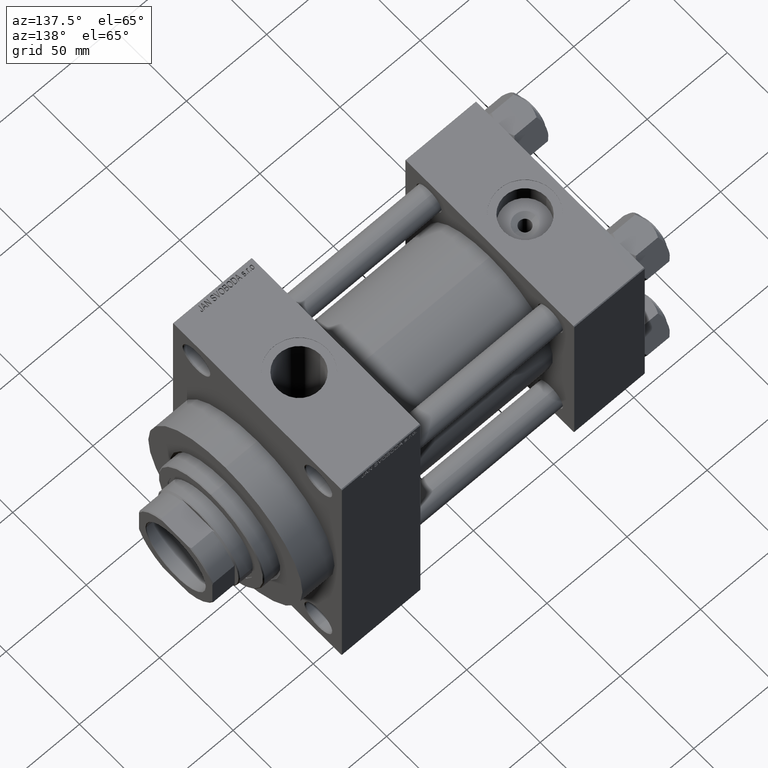
[diagram: clean part render]
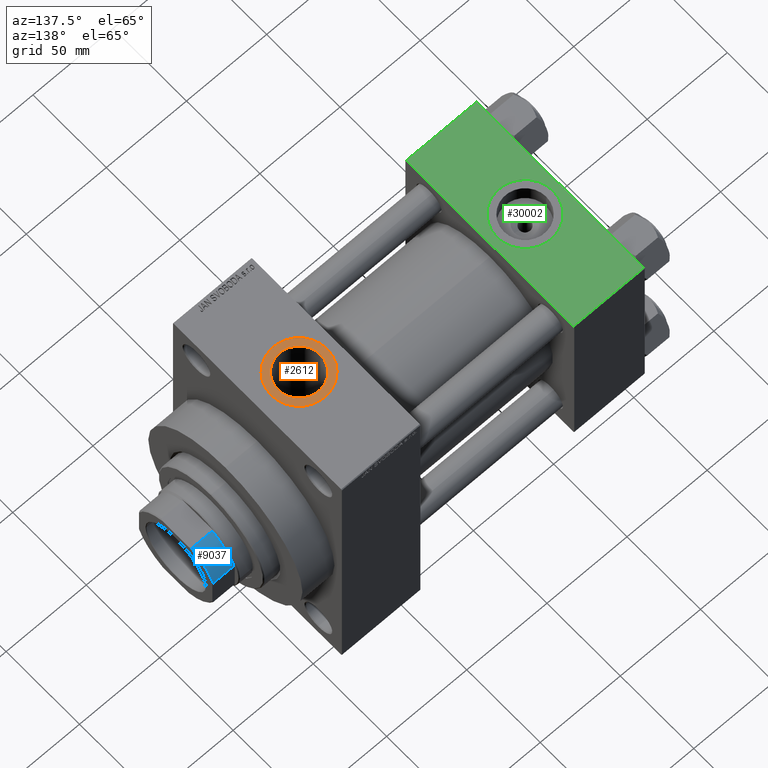
[diagram: same view with three faces highlighted in distinct colors, each labeled with its STEP entity id]
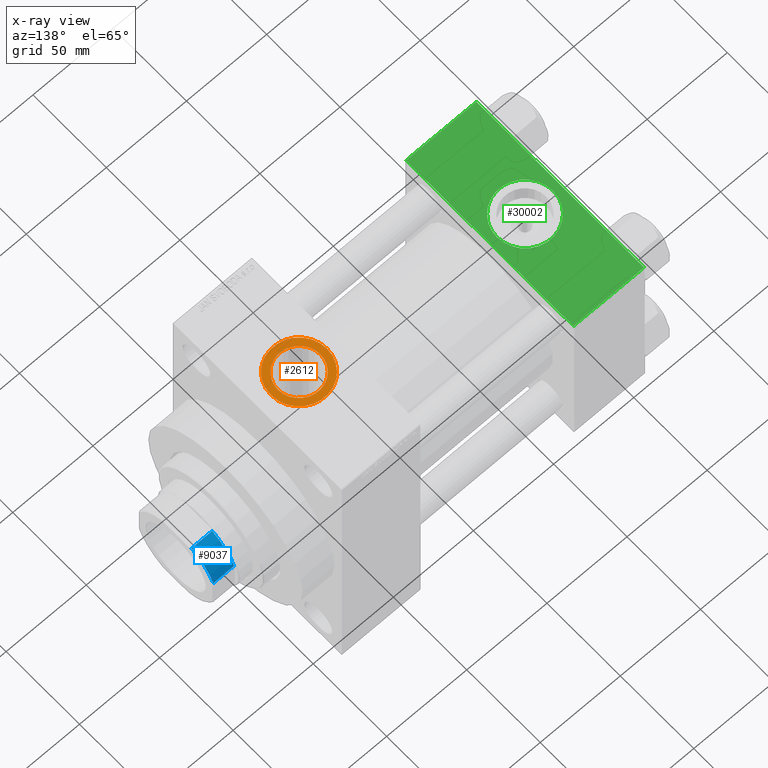
[diagram: x-ray of the same camera — body ghosted, the three highlighted faces saturated]
A machine part, auxiliary view with three faces highlighted in distinct colors.
The next image is the same camera in x-ray (body ghosted, the three faces saturated) — at least one of them is partly hidden behind the body in this view.
Their STEP definitions:

[orange] entity #2612 — the highlighted planar face has unit normal (0, 0, 1).
#2552 = ORIENTED_EDGE ( 'NONE', *, *, #45550, .T. ) ;
#2612 = ADVANCED_FACE ( 'NONE', ( #10453, #43736 ), #35786, .T. ) ;
#4523 = ORIENTED_EDGE ( 'NONE', *, *, #10465, .T. ) ;
#4833 = DIRECTION ( 'NONE',  ( -0.000000000000000000, -0.000000000000000000, -1.000000000000000000 ) ) ;
#5411 = CARTESIAN_POINT ( 'NONE',  ( 162.9999999999999716, -1.086087741481131350E-14, 89.79999999999998295 ) ) ;
#6574 = CARTESIAN_POINT ( 'NONE',  ( 180.5000000000000000, -1.086087741481131350E-14, 89.79999999999998295 ) ) ;
#8931 = VERTEX_POINT ( 'NONE', #21522 ) ;
#9294 = VERTEX_POINT ( 'NONE', #31735 ) ;
#10453 = FACE_BOUND ( 'NONE', #12890, .T. ) ;
#10465 = EDGE_CURVE ( 'NONE', #16751, #44536, #30409, .T. ) ;
#11156 = CARTESIAN_POINT ( 'NONE',  ( 162.9999999999999716, -1.086087741481131350E-14, 89.79999999999998295 ) ) ;
#12041 = CARTESIAN_POINT ( 'NONE',  ( 162.9999999999999716, -1.086087741481131350E-14, 89.79999999999998295 ) ) ;
#12855 = EDGE_CURVE ( 'NONE', #8931, #9294, #23612, .T. ) ;
#12890 = EDGE_LOOP ( 'NONE', ( #32773, #31134 ) ) ;
#16751 = VERTEX_POINT ( 'NONE', #36260 ) ;
#20125 = AXIS2_PLACEMENT_3D ( 'NONE', #11156, #37434, #44902 ) ;
#20637 = EDGE_CURVE ( 'NONE', #9294, #8931, #21143, .T. ) ;
#21143 = CIRCLE ( 'NONE', #23436, 13.22000000000000952 ) ;
#21522 = CARTESIAN_POINT ( 'NONE',  ( 149.7799999999999727, -1.086087741481131350E-14, 89.79999999999998295 ) ) ;
#22954 = CARTESIAN_POINT ( 'NONE',  ( 162.9999999999999716, -1.086087741481131350E-14, 89.79999999999998295 ) ) ;
#23436 = AXIS2_PLACEMENT_3D ( 'NONE', #22954, #4833, #37651 ) ;
#23612 = CIRCLE ( 'NONE', #27463, 13.22000000000000952 ) ;
#25893 = CARTESIAN_POINT ( 'NONE',  ( 162.9999999999999716, -1.086087741481131350E-14, 89.79999999999998295 ) ) ;
#27221 = AXIS2_PLACEMENT_3D ( 'NONE', #25893, #43500, #47349 ) ;
#27384 = DIRECTION ( 'NONE',  ( 1.000000000000000000, 0.000000000000000000, 0.000000000000000000 ) ) ;
#27463 = AXIS2_PLACEMENT_3D ( 'NONE', #12041, #41693, #41927 ) ;
#28113 = AXIS2_PLACEMENT_3D ( 'NONE', #5411, #41612, #27384 ) ;
#29344 = CIRCLE ( 'NONE', #20125, 17.50000000000001421 ) ;
#30409 = CIRCLE ( 'NONE', #28113, 17.50000000000001421 ) ;
#31134 = ORIENTED_EDGE ( 'NONE', *, *, #20637, .T. ) ;
#31735 = CARTESIAN_POINT ( 'NONE',  ( 176.2199999999999989, -9.241894346338509984E-15, 89.79999999999998295 ) ) ;
#32773 = ORIENTED_EDGE ( 'NONE', *, *, #12855, .T. ) ;
#35786 = PLANE ( 'NONE',  #27221 ) ;
#36260 = CARTESIAN_POINT ( 'NONE',  ( 145.4999999999999716, -8.717745516303440521E-15, 89.79999999999998295 ) ) ;
#37434 = DIRECTION ( 'NONE',  ( 0.000000000000000000, 0.000000000000000000, 1.000000000000000000 ) ) ;
#37651 = DIRECTION ( 'NONE',  ( 1.000000000000000000, 0.000000000000000000, 0.000000000000000000 ) ) ;
#41612 = DIRECTION ( 'NONE',  ( 0.000000000000000000, 0.000000000000000000, 1.000000000000000000 ) ) ;
#41693 = DIRECTION ( 'NONE',  ( -0.000000000000000000, -0.000000000000000000, -1.000000000000000000 ) ) ;
#41927 = DIRECTION ( 'NONE',  ( 1.000000000000000000, 0.000000000000000000, 0.000000000000000000 ) ) ;
#43500 = DIRECTION ( 'NONE',  ( 0.000000000000000000, 0.000000000000000000, 1.000000000000000000 ) ) ;
#43736 = FACE_OUTER_BOUND ( 'NONE', #43971, .T. ) ;
#43971 = EDGE_LOOP ( 'NONE', ( #2552, #4523 ) ) ;
#44536 = VERTEX_POINT ( 'NONE', #6574 ) ;
#44902 = DIRECTION ( 'NONE',  ( 1.000000000000000000, 0.000000000000000000, 0.000000000000000000 ) ) ;
#45550 = EDGE_CURVE ( 'NONE', #44536, #16751, #29344, .T. ) ;
#47349 = DIRECTION ( 'NONE',  ( 1.000000000000000000, 0.000000000000000000, -0.000000000000000000 ) ) ;

[blue] entity #9037 — the highlighted cylindrical surface (partial cylindrical patch) has radius 27 mm, axis along (1, 0, 0).
#3445 = ORIENTED_EDGE ( 'NONE', *, *, #37368, .T. ) ;
#4538 = CARTESIAN_POINT ( 'NONE',  ( 0.000000000000000000, 0.000000000000000000, -0.001000000000001000089 ) ) ;
#5009 = CYLINDRICAL_SURFACE ( 'NONE', #30373, 26.99999999999999645 ) ;
#6418 = DIRECTION ( 'NONE',  ( -1.000000000000000000, 0.000000000000000000, 0.000000000000000000 ) ) ;
#7313 = DIRECTION ( 'NONE',  ( -0.000000000000000000, -0.000000000000000000, 1.000000000000000000 ) ) ;
#7392 = DIRECTION ( 'NONE',  ( -0.000000000000000000, -0.000000000000000000, 1.000000000000000000 ) ) ;
#7972 = CARTESIAN_POINT ( 'NONE',  ( 0.000000000000000000, 0.000000000000000000, 195.5000000000000284 ) ) ;
#8682 = DIRECTION ( 'NONE',  ( -0.000000000000000000, -0.000000000000000000, -1.000000000000000000 ) ) ;
#9037 = ADVANCED_FACE ( 'NONE', ( #37815 ), #5009, .T. ) ;
#9634 = VERTEX_POINT ( 'NONE', #28320 ) ;
#11414 = LINE ( 'NONE', #25187, #15994 ) ;
#11974 = VECTOR ( 'NONE', #7392, 1000.000000000000000 ) ;
#12245 = EDGE_LOOP ( 'NONE', ( #44641, #3445, #40086, #20926 ) ) ;
#15120 = CARTESIAN_POINT ( 'NONE',  ( -10.19803902718555655, -25.00000000000000000, -0.001000000000001000089 ) ) ;
#15576 = CARTESIAN_POINT ( 'NONE',  ( -10.19803902718555655, -25.00000000000000000, 195.5000000000000284 ) ) ;
#15994 = VECTOR ( 'NONE', #7313, 1000.000000000000000 ) ;
#19099 = CIRCLE ( 'NONE', #26809, 26.99999999999999645 ) ;
#19526 = CIRCLE ( 'NONE', #40409, 26.99999999999999645 ) ;
#19667 = VERTEX_POINT ( 'NONE', #47367 ) ;
#19804 = DIRECTION ( 'NONE',  ( 1.000000000000000000, 8.881784197001252323E-16, 0.000000000000000000 ) ) ;
#20926 = ORIENTED_EDGE ( 'NONE', *, *, #21712, .T. ) ;
#21712 = EDGE_CURVE ( 'NONE', #19667, #29626, #19526, .T. ) ;
#24770 = CARTESIAN_POINT ( 'NONE',  ( 0.000000000000000000, 0.000000000000000000, 182.5000000000000853 ) ) ;
#25187 = CARTESIAN_POINT ( 'NONE',  ( -25.00000000000000000, -10.19803902718555300, -0.001000000000001000089 ) ) ;
#26809 = AXIS2_PLACEMENT_3D ( 'NONE', #7972, #8682, #19804 ) ;
#27403 = EDGE_CURVE ( 'NONE', #29626, #34205, #40445, .T. ) ;
#28320 = CARTESIAN_POINT ( 'NONE',  ( -25.00000000000000000, -10.19803902718555300, 195.5000000000000284 ) ) ;
#29626 = VERTEX_POINT ( 'NONE', #37576 ) ;
#30097 = DIRECTION ( 'NONE',  ( -0.000000000000000000, -0.000000000000000000, 1.000000000000000000 ) ) ;
#30373 = AXIS2_PLACEMENT_3D ( 'NONE', #4538, #30097, #41902 ) ;
#34205 = VERTEX_POINT ( 'NONE', #15576 ) ;
#36948 = EDGE_CURVE ( 'NONE', #19667, #9634, #11414, .T. ) ;
#37368 = EDGE_CURVE ( 'NONE', #34205, #9634, #19099, .T. ) ;
#37576 = CARTESIAN_POINT ( 'NONE',  ( -10.19803902718555655, -25.00000000000000000, 182.5000000000000853 ) ) ;
#37815 = FACE_OUTER_BOUND ( 'NONE', #12245, .T. ) ;
#39472 = DIRECTION ( 'NONE',  ( -0.000000000000000000, -0.000000000000000000, 1.000000000000000000 ) ) ;
#40086 = ORIENTED_EDGE ( 'NONE', *, *, #36948, .F. ) ;
#40409 = AXIS2_PLACEMENT_3D ( 'NONE', #24770, #39472, #6418 ) ;
#40445 = LINE ( 'NONE', #15120, #11974 ) ;
#41902 = DIRECTION ( 'NONE',  ( 1.000000000000000000, 0.000000000000000000, 0.000000000000000000 ) ) ;
#44641 = ORIENTED_EDGE ( 'NONE', *, *, #27403, .T. ) ;
#47367 = CARTESIAN_POINT ( 'NONE',  ( -25.00000000000000000, -10.19803902718555300, 182.5000000000000853 ) ) ;

[green] entity #30002 — the highlighted planar face has unit normal (0, 0, -1).
#880 = DIRECTION ( 'NONE',  ( -1.000000000000000000, 0.000000000000000000, 0.000000000000000000 ) ) ;
#1095 = CARTESIAN_POINT ( 'NONE',  ( 39.50000000000000000, -8.673617379884035472E-15, 57.50000000000000000 ) ) ;
#2261 = CARTESIAN_POINT ( 'NONE',  ( 44.00000000000000000, 57.49999999999999289, 57.50000000000000711 ) ) ;
#2264 = DIRECTION ( 'NONE',  ( 0.000000000000000000, 1.000000000000000000, 1.206764157201257045E-16 ) ) ;
#3470 = CARTESIAN_POINT ( 'NONE',  ( 44.00000000000000000, -57.00000000000003553, 57.49999999999999289 ) ) ;
#4555 = AXIS2_PLACEMENT_3D ( 'NONE', #7256, #21997, #26083 ) ;
#4811 = DIRECTION ( 'NONE',  ( 1.000000000000000000, 0.000000000000000000, 0.000000000000000000 ) ) ;
#5413 = ORIENTED_EDGE ( 'NONE', *, *, #40951, .F. ) ;
#6125 = CARTESIAN_POINT ( 'NONE',  ( 44.00000000000000000, 57.49999999999999289, 57.50000000000000711 ) ) ;
#7256 = CARTESIAN_POINT ( 'NONE',  ( 22.00000000000000000, -8.673617379884035472E-15, 57.50000000000000000 ) ) ;
#7821 = CARTESIAN_POINT ( 'NONE',  ( 4.499999999999997335, -6.530485481376167224E-15, 57.50000000000000000 ) ) ;
#8211 = CARTESIAN_POINT ( 'NONE',  ( 44.00000000000000000, -57.00000000000003553, 57.49999999999999289 ) ) ;
#8418 = DIRECTION ( 'NONE',  ( 0.000000000000000000, -1.000000000000000000, -1.206764157201257045E-16 ) ) ;
#8749 = CARTESIAN_POINT ( 'NONE',  ( 0.000000000000000000, -57.00000000000003553, 57.49999999999999289 ) ) ;
#9502 = FACE_OUTER_BOUND ( 'NONE', #27418, .T. ) ;
#10930 = CARTESIAN_POINT ( 'NONE',  ( 44.00000000000000000, 57.00000000000000711, 57.50000000000000711 ) ) ;
#11173 = VERTEX_POINT ( 'NONE', #3470 ) ;
#11927 = VECTOR ( 'NONE', #880, 1000.000000000000000 ) ;
#12012 = CARTESIAN_POINT ( 'NONE',  ( 0.000000000000000000, 57.00000000000000711, 57.50000000000000711 ) ) ;
#13617 = DIRECTION ( 'NONE',  ( 0.000000000000000000, -1.000000000000000000, -1.206764157201257045E-16 ) ) ;
#16989 = ORIENTED_EDGE ( 'NONE', *, *, #41643, .F. ) ;
#17823 = VERTEX_POINT ( 'NONE', #10930 ) ;
#18083 = ORIENTED_EDGE ( 'NONE', *, *, #37413, .T. ) ;
#19201 = ORIENTED_EDGE ( 'NONE', *, *, #26346, .T. ) ;
#19770 = CARTESIAN_POINT ( 'NONE',  ( 0.000000000000000000, 57.49999999999999289, 57.50000000000000711 ) ) ;
#21997 = DIRECTION ( 'NONE',  ( 0.000000000000000000, 0.000000000000000000, 1.000000000000000000 ) ) ;
#22156 = LINE ( 'NONE', #26251, #11927 ) ;
#22203 = VECTOR ( 'NONE', #13617, 1000.000000000000000 ) ;
#22915 = VERTEX_POINT ( 'NONE', #8749 ) ;
#23168 = CARTESIAN_POINT ( 'NONE',  ( 22.00000000000000000, -8.673617379884035472E-15, 57.50000000000000000 ) ) ;
#24716 = VERTEX_POINT ( 'NONE', #7821 ) ;
#26083 = DIRECTION ( 'NONE',  ( 1.000000000000000000, 0.000000000000000000, 0.000000000000000000 ) ) ;
#26251 = CARTESIAN_POINT ( 'NONE',  ( 0.000000000000000000, 57.00000000000000711, 57.50000000000000711 ) ) ;
#26346 = EDGE_CURVE ( 'NONE', #17823, #33799, #22156, .T. ) ;
#27418 = EDGE_LOOP ( 'NONE', ( #40515, #18083, #47070, #19201 ) ) ;
#28386 = EDGE_CURVE ( 'NONE', #33799, #22915, #33980, .T. ) ;
#29201 = CIRCLE ( 'NONE', #42318, 17.50000000000000000 ) ;
#30002 = ADVANCED_FACE ( 'NONE', ( #35091, #9502 ), #46176, .F. ) ;
#31258 = EDGE_LOOP ( 'NONE', ( #5413, #16989 ) ) ;
#32407 = LINE ( 'NONE', #2261, #22203 ) ;
#33799 = VERTEX_POINT ( 'NONE', #12012 ) ;
#33980 = LINE ( 'NONE', #19770, #36651 ) ;
#34290 = EDGE_CURVE ( 'NONE', #17823, #11173, #32407, .T. ) ;
#35091 = FACE_BOUND ( 'NONE', #31258, .T. ) ;
#36651 = VECTOR ( 'NONE', #8418, 1000.000000000000000 ) ;
#37413 = EDGE_CURVE ( 'NONE', #22915, #11173, #41250, .T. ) ;
#37861 = DIRECTION ( 'NONE',  ( 0.000000000000000000, 0.000000000000000000, 1.000000000000000000 ) ) ;
#38579 = DIRECTION ( 'NONE',  ( 1.000000000000000000, 0.000000000000000000, 0.000000000000000000 ) ) ;
#40515 = ORIENTED_EDGE ( 'NONE', *, *, #28386, .T. ) ;
#40951 = EDGE_CURVE ( 'NONE', #42990, #24716, #29201, .T. ) ;
#41250 = LINE ( 'NONE', #8211, #45291 ) ;
#41643 = EDGE_CURVE ( 'NONE', #24716, #42990, #43080, .T. ) ;
#42077 = DIRECTION ( 'NONE',  ( 0.000000000000000000, 1.206764157201257045E-16, -1.000000000000000000 ) ) ;
#42318 = AXIS2_PLACEMENT_3D ( 'NONE', #23168, #37861, #4811 ) ;
#42990 = VERTEX_POINT ( 'NONE', #1095 ) ;
#43080 = CIRCLE ( 'NONE', #4555, 17.50000000000000000 ) ;
#44392 = AXIS2_PLACEMENT_3D ( 'NONE', #6125, #42077, #2264 ) ;
#45291 = VECTOR ( 'NONE', #38579, 1000.000000000000000 ) ;
#46176 = PLANE ( 'NONE',  #44392 ) ;
#47070 = ORIENTED_EDGE ( 'NONE', *, *, #34290, .F. ) ;